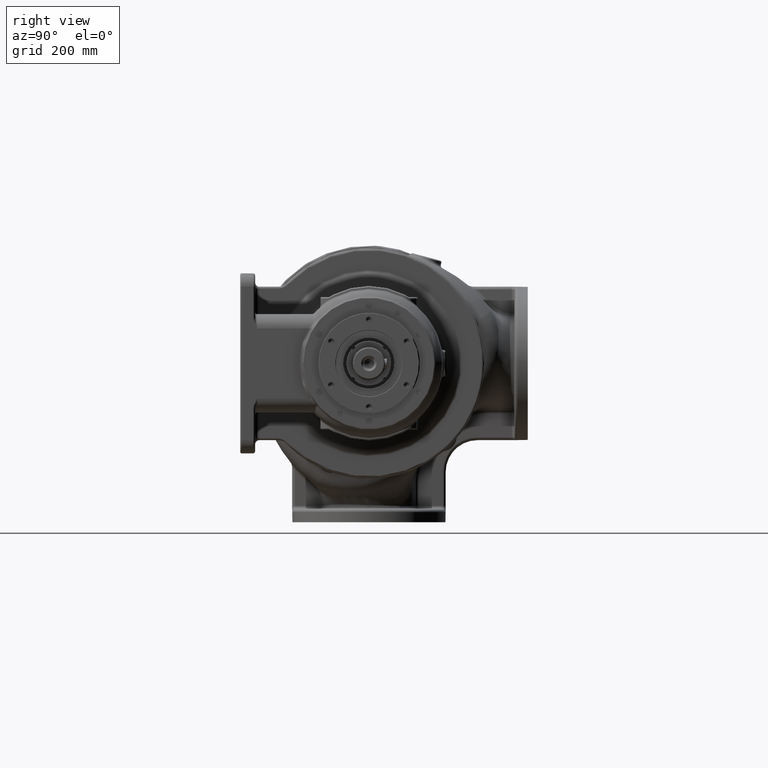
[diagram: clean part render]
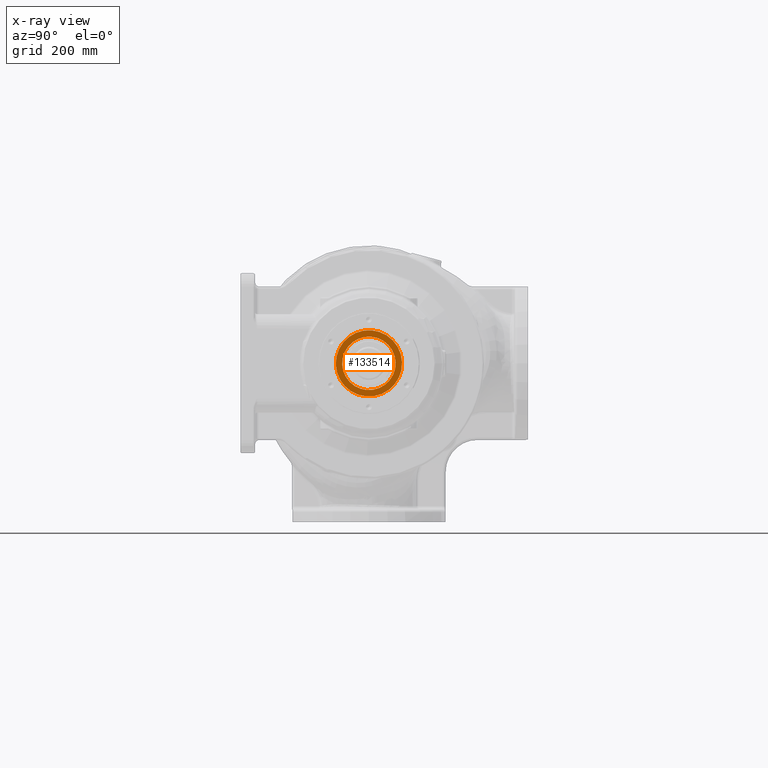
[diagram: x-ray — body ghosted, one internal face saturated and labeled with its STEP entity id]
A machine part, right view, then the same camera in x-ray: the body is ghosted and one INTERNAL B-rep face — a face not visible from any outside direction — is saturated and labeled: STEP entity #133514.
In plain terms, the highlighted planar face has unit normal (-1, 0, 0).
Its self-contained STEP definition (entity closure, byte-faithful):
#132591=CARTESIAN_POINT('',(4.175E2,0.E0,0.E0));
#132592=DIRECTION('',(-1.E0,0.E0,0.E0));
#132593=DIRECTION('',(0.E0,-8.660254037844E-1,-5.E-1));
#132594=AXIS2_PLACEMENT_3D('',#132591,#132592,#132593);
#132596=CARTESIAN_POINT('',(4.175E2,0.E0,0.E0));
#132597=DIRECTION('',(-1.E0,0.E0,0.E0));
#132598=DIRECTION('',(0.E0,8.660254037844E-1,5.E-1));
#132599=AXIS2_PLACEMENT_3D('',#132596,#132597,#132598);
#132601=CARTESIAN_POINT('',(4.175E2,0.E0,0.E0));
#132602=DIRECTION('',(1.E0,0.E0,0.E0));
#132603=DIRECTION('',(0.E0,-8.660254037844E-1,-5.E-1));
#132604=AXIS2_PLACEMENT_3D('',#132601,#132602,#132603);
#132606=CARTESIAN_POINT('',(4.175E2,0.E0,0.E0));
#132607=DIRECTION('',(1.E0,0.E0,0.E0));
#132608=DIRECTION('',(0.E0,8.660254037844E-1,5.E-1));
#132609=AXIS2_PLACEMENT_3D('',#132606,#132607,#132608);
#132756=CARTESIAN_POINT('',(4.175E2,-5.421319027691E1,-3.13E1));
#132757=CARTESIAN_POINT('',(4.175E2,5.421319027691E1,3.13E1));
#132758=VERTEX_POINT('',#132756);
#132759=VERTEX_POINT('',#132757);
#132800=CARTESIAN_POINT('',(4.175E2,-4.373428289111E1,-2.525E1));
#132801=CARTESIAN_POINT('',(4.175E2,4.373428289111E1,2.525E1));
#132802=VERTEX_POINT('',#132800);
#132803=VERTEX_POINT('',#132801);
#133498=CARTESIAN_POINT('',(4.175E2,0.E0,0.E0));
#133499=DIRECTION('',(-1.E0,0.E0,0.E0));
#133500=DIRECTION('',(0.E0,-8.660254037844E-1,-5.E-1));
#133501=AXIS2_PLACEMENT_3D('',#133498,#133499,#133500);
#133502=PLANE('',#133501);
#133504=ORIENTED_EDGE('',*,*,#133503,.F.);
#133506=ORIENTED_EDGE('',*,*,#133505,.F.);
#133507=EDGE_LOOP('',(#133504,#133506));
#133508=FACE_OUTER_BOUND('',#133507,.F.);
#133509=ORIENTED_EDGE('',*,*,#133488,.F.);
#133511=ORIENTED_EDGE('',*,*,#133510,.F.);
#133512=EDGE_LOOP('',(#133509,#133511));
#133513=FACE_BOUND('',#133512,.F.);
#133514=ADVANCED_FACE('',(#133508,#133513),#133502,.T.);
#132595=CIRCLE('',#132594,6.26E1);
#132600=CIRCLE('',#132599,6.26E1);
#132605=CIRCLE('',#132604,5.05E1);
#132610=CIRCLE('',#132609,5.05E1);
#133488=EDGE_CURVE('',#132802,#132803,#132605,.T.);
#133503=EDGE_CURVE('',#132758,#132759,#132595,.T.);
#133505=EDGE_CURVE('',#132759,#132758,#132600,.T.);
#133510=EDGE_CURVE('',#132803,#132802,#132610,.T.);